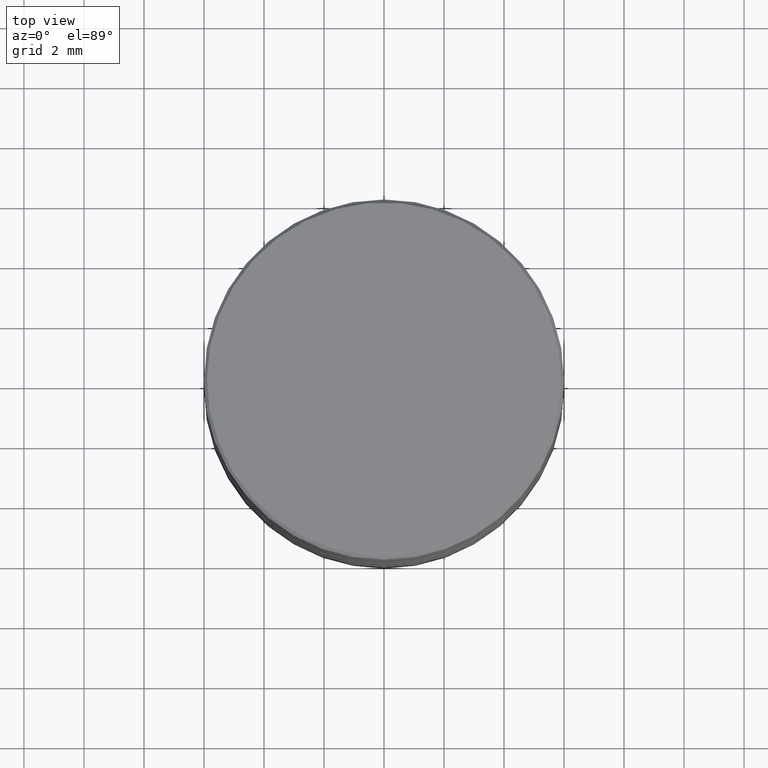
[diagram: clean part render]
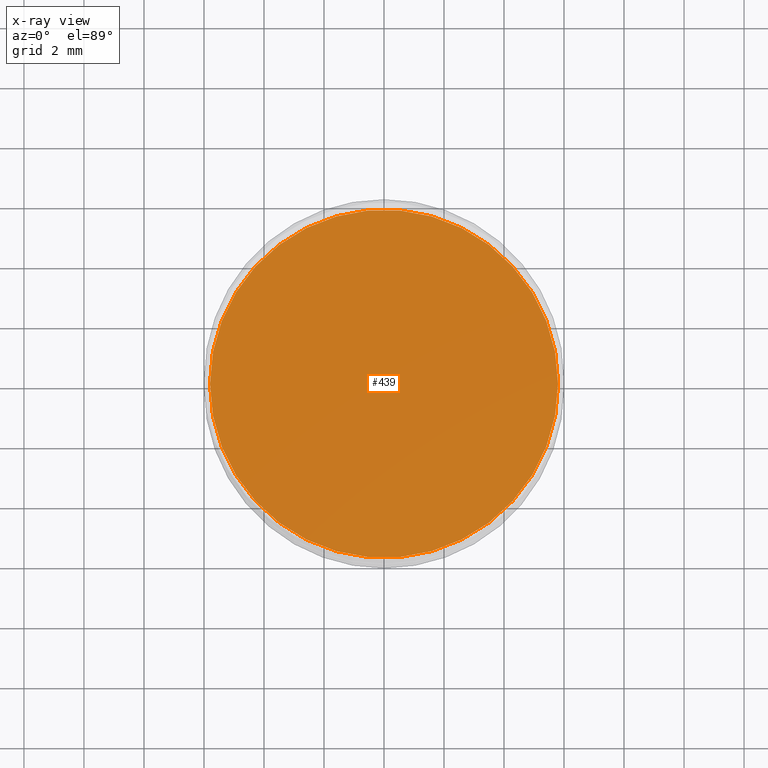
[diagram: x-ray — body ghosted, one internal face saturated and labeled with its STEP entity id]
A machine part, top view, then the same camera in x-ray: the body is ghosted and one INTERNAL B-rep face — a face not visible from any outside direction — is saturated and labeled: STEP entity #439.
In plain terms, the highlighted planar face has unit normal (0, 0, -1).
Its self-contained STEP definition (entity closure, byte-faithful):
#35 = EDGE_CURVE ( 'NONE', #609, #854, #871, .T. ) ;
#93 = AXIS2_PLACEMENT_3D ( 'NONE', #423, #432, #837 ) ;
#143 = CARTESIAN_POINT ( 'NONE',  ( 5.800000000000001599, 7.225416114969385180E-16, -8.500000000000000000 ) ) ;
#173 = ORIENTED_EDGE ( 'NONE', *, *, #480, .T. ) ;
#203 = CARTESIAN_POINT ( 'NONE',  ( 0.000000000000000000, 0.000000000000000000, -8.500000000000000000 ) ) ;
#208 = DIRECTION ( 'NONE',  ( -1.000000000000000000, 0.000000000000000000, 0.000000000000000000 ) ) ;
#273 = DIRECTION ( 'NONE',  ( -1.000000000000000000, 0.000000000000000000, 0.000000000000000000 ) ) ;
#288 = DIRECTION ( 'NONE',  ( -0.000000000000000000, -0.000000000000000000, 1.000000000000000000 ) ) ;
#290 = ORIENTED_EDGE ( 'NONE', *, *, #35, .T. ) ;
#332 = CIRCLE ( 'NONE', #660, 5.800000000000001599 ) ;
#360 = CARTESIAN_POINT ( 'NONE',  ( -5.800000000000001599, 0.000000000000000000, -8.500000000000000000 ) ) ;
#423 = CARTESIAN_POINT ( 'NONE',  ( 0.000000000000000000, 0.000000000000000000, -8.500000000000000000 ) ) ;
#432 = DIRECTION ( 'NONE',  ( 0.000000000000000000, 0.000000000000000000, -1.000000000000000000 ) ) ;
#439 = ADVANCED_FACE ( 'NONE', ( #743 ), #658, .F. ) ;
#480 = EDGE_CURVE ( 'NONE', #854, #609, #332, .T. ) ;
#609 = VERTEX_POINT ( 'NONE', #143 ) ;
#658 = PLANE ( 'NONE',  #93 ) ;
#660 = AXIS2_PLACEMENT_3D ( 'NONE', #203, #991, #273 ) ;
#706 = AXIS2_PLACEMENT_3D ( 'NONE', #760, #288, #208 ) ;
#743 = FACE_OUTER_BOUND ( 'NONE', #812, .T. ) ;
#760 = CARTESIAN_POINT ( 'NONE',  ( 0.000000000000000000, 0.000000000000000000, -8.500000000000000000 ) ) ;
#812 = EDGE_LOOP ( 'NONE', ( #173, #290 ) ) ;
#837 = DIRECTION ( 'NONE',  ( -1.000000000000000000, 0.000000000000000000, -0.000000000000000000 ) ) ;
#854 = VERTEX_POINT ( 'NONE', #360 ) ;
#871 = CIRCLE ( 'NONE', #706, 5.800000000000001599 ) ;
#991 = DIRECTION ( 'NONE',  ( -0.000000000000000000, -0.000000000000000000, 1.000000000000000000 ) ) ;